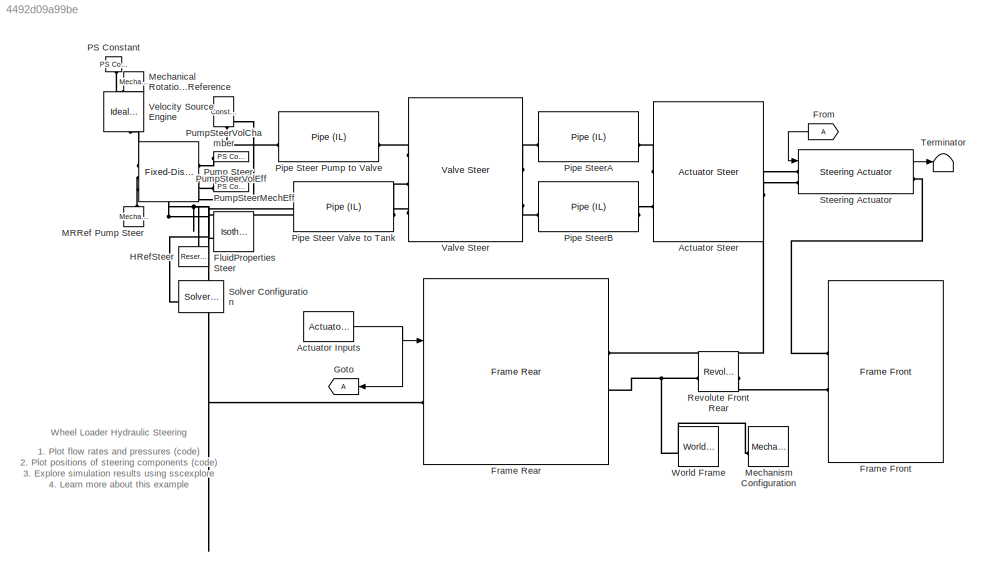
MODEL slx_4492d09a99be
KIND model
CONFIG AbsTol = 1e-3
CONFIG EnableMultiTasking = off
CONFIG FixedStep = auto
CONFIG MaxStep = auto
CONFIG MinStep = auto
CONFIG RelTol = 1e-3
CONFIG SampleTimeConstraint = Unconstrained
CONFIG SolverName = ode23t
CONFIG StartTime = 0.0
CONFIG StopTime = 70
BLOCK [Reference] Actuator Inputs  REF=sm_wheel_loader_lib/Actuator Inputs  (lib defined in slx_2f13f0afc9e9, slx_78fdec152d5c)
  AttributesFormatString = %<popup_impl>
  SourceBlock = sm_wheel_loader_lib/Actuator Inputs
BLOCK [Reference] Actuator Steer  REF=sm_wheel_loader_lib/Wheel Loader Vehicle/Actuators/Hydraulic/Actuator Steer  (lib defined in slx_2f13f0afc9e9, slx_78fdec152d5c)
  SourceBlock = sm_wheel_loader_lib/Wheel Loader Vehicle/Actuators/Hydraulic/Actuator Steer
BLOCK [Reference] FluidProperties Steer  REF=fl_lib/Isothermal Liquid/Utilities/Isothermal Liquid
Properties (IL)
  SourceBlock = fl_lib/Isothermal Liquid/Utilities/Isothermal Liquid\nProperties (IL)
  SourceType = Isothermal Liquid\nProperties (IL)
BLOCK [Reference] Frame Front  REF=sm_wheel_loader_lib/Wheel Loader Vehicle/Frame Front  (lib defined in slx_2f13f0afc9e9, slx_78fdec152d5c)
  SourceBlock = sm_wheel_loader_lib/Wheel Loader Vehicle/Frame Front
BLOCK [Reference] Frame Rear  REF=sm_wheel_loader_lib/Wheel Loader Vehicle/Frame Rear  (lib defined in slx_2f13f0afc9e9, slx_78fdec152d5c)
  SourceBlock = sm_wheel_loader_lib/Wheel Loader Vehicle/Frame Rear
BLOCK [From] From
BLOCK [Goto] Goto
BLOCK [Reference] HRefSteer  REF=fl_lib/Isothermal Liquid/Elements/Reservoir (IL)
  SourceBlock = fl_lib/Isothermal Liquid/Elements/Reservoir (IL)
  SourceType = Reservoir (IL)
BLOCK [Reference] MRRef Pump Steer  REF=fl_lib/Mechanical/Rotational Elements/Mechanical
Rotational Reference
  SourceBlock = fl_lib/Mechanical/Rotational Elements/Mechanical\nRotational Reference
  SourceType = Mechanical\nRotational Reference
BLOCK [Reference] Mechanical Rotational Reference  REF=fl_lib/Mechanical/Rotational Elements/Mechanical
Rotational Reference
  NameLocation = right
  SourceBlock = fl_lib/Mechanical/Rotational Elements/Mechanical\nRotational Reference
  SourceType = Mechanical\nRotational Reference
BLOCK [Reference] Mechanism Configuration  REF=sm_lib/Utilities/Mechanism
Configuration
  SourceBlock = sm_lib/Utilities/Mechanism\nConfiguration
  SourceType = Mechanism\nConfiguration
BLOCK [Reference] PS Constant  REF=fl_lib/Physical Signals/Sources/PS Constant
  NameLocation = right
  SourceBlock = fl_lib/Physical Signals/Sources/PS Constant
  SourceType = PS Constant
BLOCK [Reference] Pipe Steer Pump to Valve  REF=fl_lib/Isothermal Liquid/Elements/Pipe (IL)
  SourceBlock = fl_lib/Isothermal Liquid/Elements/Pipe (IL)
  SourceType = Pipe (IL)
BLOCK [Reference] Pipe Steer Valve to Tank  REF=fl_lib/Isothermal Liquid/Elements/Pipe (IL)
  SourceBlock = fl_lib/Isothermal Liquid/Elements/Pipe (IL)
  SourceType = Pipe (IL)
BLOCK [Reference] Pipe SteerA  REF=fl_lib/Isothermal Liquid/Elements/Pipe (IL)
  NameLocation = top
  SourceBlock = fl_lib/Isothermal Liquid/Elements/Pipe (IL)
  SourceType = Pipe (IL)
BLOCK [Reference] Pipe SteerB  REF=fl_lib/Isothermal Liquid/Elements/Pipe (IL)
  SourceBlock = fl_lib/Isothermal Liquid/Elements/Pipe (IL)
  SourceType = Pipe (IL)
BLOCK [Reference] Pump Steer  REF=SimscapeFluids_lib/Isothermal Liquid/Pumps & Motors/Fixed-Displacement
Pump (IL)
  NameLocation = left
  SourceBlock = SimscapeFluids_lib/Isothermal Liquid/Pumps & Motors/Fixed-Displacement\nPump (IL)
  SourceType = Fixed-Displacement\nPump (IL)
BLOCK [Reference] PumpSteerMechEff  REF=fl_lib/Physical Signals/Sources/PS Constant
  SourceBlock = fl_lib/Physical Signals/Sources/PS Constant
  SourceType = PS Constant
BLOCK [Reference] PumpSteerVolChamber  REF=fl_lib/Isothermal Liquid/Elements/Constant Volume
Chamber (IL)
  NameLocation = top
  SourceBlock = fl_lib/Isothermal Liquid/Elements/Constant Volume\nChamber (IL)
  SourceType = Constant Volume\nChamber (IL)
BLOCK [Reference] PumpSteerVolEff  REF=fl_lib/Physical Signals/Sources/PS Constant
  SourceBlock = fl_lib/Physical Signals/Sources/PS Constant
  SourceType = PS Constant
BLOCK [Reference] Revolute Front Rear  REF=sm_lib/Joints/Revolute Joint
  SourceBlock = sm_lib/Joints/Revolute Joint
  SourceType = Revolute Joint
BLOCK [Reference] Solver Configuration  REF=nesl_utility/Solver
Configuration
  SourceBlock = nesl_utility/Solver\nConfiguration
  SourceType = Solver\nConfiguration
BLOCK [Reference] Steering Actuator  REF=sm_wheel_loader_lib/Wheel Loader Vehicle/Steering Actuator  (lib defined in slx_2f13f0afc9e9, slx_78fdec152d5c)
  SourceBlock = sm_wheel_loader_lib/Wheel Loader Vehicle/Steering Actuator
BLOCK [Terminator] Terminator
BLOCK [Reference] Valve Steer  REF=sm_wheel_loader_lib/Wheel Loader Vehicle/Actuators/Hydraulic/Valve Steer  (lib defined in slx_2f13f0afc9e9, slx_78fdec152d5c)
  SourceBlock = sm_wheel_loader_lib/Wheel Loader Vehicle/Actuators/Hydraulic/Valve Steer
BLOCK [Reference] Velocity Source Engine  REF=fl_lib/Mechanical/Mechanical Sources/Ideal Angular
Velocity Source
  NameLocation = right
  SourceBlock = fl_lib/Mechanical/Mechanical Sources/Ideal Angular\nVelocity Source
  SourceType = Ideal Angular\nVelocity Source
BLOCK [Reference] World Frame  REF=sm_lib/Frames and
Transforms/World Frame
  SourceBlock = sm_lib/Frames and\nTransforms/World Frame
  SourceType = World Frame
ANNOTATION (root): 1. Plot flow rates and pressures ( code ) 2. Plot positions of steering components ( code ) 3. Explore simulation results using sscexplore 4. Learn more about this example
ANNOTATION (root): Wheel Loader Hydraulic Steering
NET Actuator Inputs:1 -> Frame Rear:1, Goto:1
LINE From:1 -> Steering Actuator:1
LINE Steering Actuator:1 -> Terminator:1
PLINE Actuator Steer:LConn1 -- Pipe SteerA:RConn1
PLINE Actuator Steer:LConn2 -- Pipe SteerB:RConn1
PLINE Actuator Steer:RConn1 -- Steering Actuator:LConn1
PNET net1: FluidProperties Steer:RConn1 -- HRefSteer:LConn1 -- Pipe Steer Valve to Tank:RConn1 -- Pump Steer:RConn3 -- Solver Configuration:RConn1
PLINE Frame Front:LConn1 -- Steering Actuator:RConn1
PLINE Frame Front:LConn2 -- Revolute Front Rear:RConn1
PLINE Frame Rear:LConn1 -- Valve Steer:LConn3
PLINE Frame Rear:RConn1 -- Steering Actuator:LConn2
PNET net2: Frame Rear:RConn2 -- Mechanism Configuration:RConn1 -- Revolute Front Rear:LConn1 -- World Frame:RConn1
PLINE MRRef Pump Steer:LConn1 -- Pump Steer:RConn2
PLINE Mechanical Rotational Reference:LConn1 -- Velocity Source Engine:RConn2
PLINE PS Constant:RConn1 -- Velocity Source Engine:RConn1
PNET net3: Pipe Steer Pump to Valve:LConn1 -- Pump Steer:LConn3 -- PumpSteerVolChamber:LConn1
PLINE Pipe Steer Pump to Valve:RConn1 -- Valve Steer:LConn1
PLINE Pipe Steer Valve to Tank:LConn1 -- Valve Steer:LConn2
PLINE Pipe SteerA:LConn1 -- Valve Steer:RConn1
PLINE Pipe SteerB:LConn1 -- Valve Steer:RConn2
PLINE Pump Steer:LConn1 -- PumpSteerVolEff:RConn1
PLINE Pump Steer:LConn2 -- PumpSteerMechEff:RConn1
PLINE Pump Steer:RConn1 -- Velocity Source Engine:LConn1
note: NET lines group one-source signal fan-out (src -> all destinations, sorted); 1:1 wires keep LINE; PNET lines group multi-terminal physical nets as a canonical sorted terminal list (undirected conserving connections); 2-terminal nets keep the pairwise PLINE form
